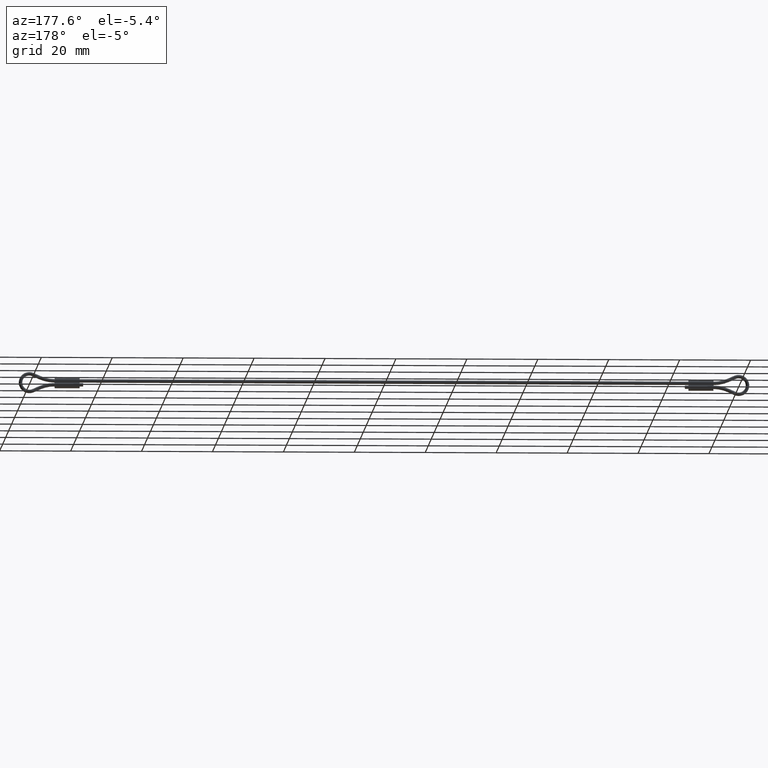
[diagram: clean part render]
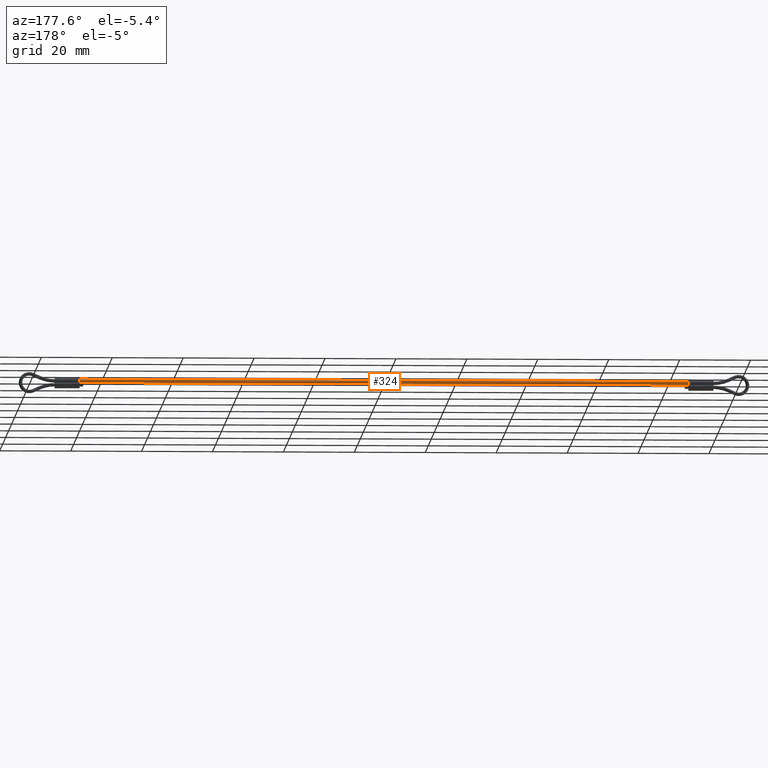
[diagram: same view with one face highlighted and labeled with its STEP entity id]
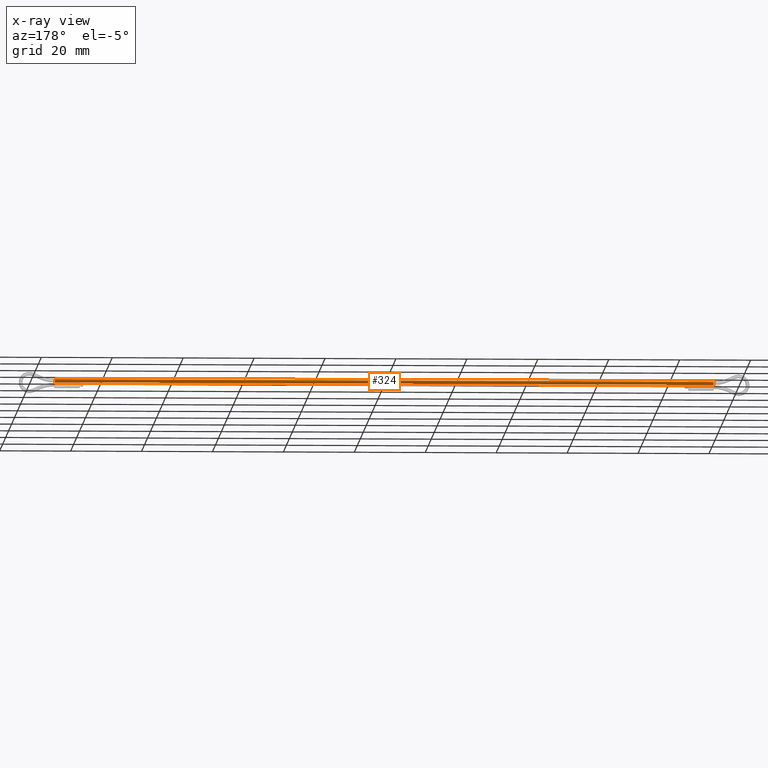
[diagram: x-ray of the same camera — body ghosted, the highlighted face saturated]
A machine part, auxiliary view. The second image highlights one B-rep face of the part: STEP entity #324.
The next image is the same camera in x-ray: the body ghosted, the highlighted face saturated — about 0% of this face is hidden behind the body in this view.
In plain terms, the highlighted cylindrical surface (edge-blend (fillet) strip) has radius 0.5 mm, axis along (-1, 0, -0).
Its self-contained STEP definition (entity closure, byte-faithful):
#324=ADVANCED_FACE('',(#453),#452,.T.);
#452=CYLINDRICAL_SURFACE('',#891,5.00000000000E-01);
#453=FACE_OUTER_BOUND('',#892,.T.);
#888=CARTESIAN_POINT('',(-1.02500000000E+02,0.00000000000E+00,5.49999999986E-01));
#889=DIRECTION('',(-1.00000000000E+00,0.00000000000E+00,-2.35659389349E-14));
#890=DIRECTION('',(-2.35659389349E-14,-0.00000000000E+00,1.00000000000E+00));
#891=AXIS2_PLACEMENT_3D('',#888,#889,#890);
#892=EDGE_LOOP('',(#1214,#1215,#1216,#1217));
#1214=ORIENTED_EDGE('',*,*,#1356,.F.);
#1215=ORIENTED_EDGE('',*,*,#1357,.F.);
#1216=ORIENTED_EDGE('',*,*,#1358,.T.);
#1217=ORIENTED_EDGE('',*,*,#1359,.T.);
#1356=EDGE_CURVE('',#1558,#1559,#1560,.T.);
#1357=EDGE_CURVE('',#1566,#1558,#1567,.T.);
#1358=EDGE_CURVE('',#1566,#1573,#1574,.T.);
#1359=EDGE_CURVE('',#1573,#1559,#1580,.T.);
#1558=VERTEX_POINT('',#2026);
#1559=VERTEX_POINT('',#2027);
#1560=CIRCLE('',#2031,5.00000000000E-01);
#1566=VERTEX_POINT('',#2032);
#1567=(BOUNDED_CURVE() B_SPLINE_CURVE(1,(#2033,#2034),.UNSPECIFIED.,.F.,.F.) B_SPLINE_CURVE_WITH_KNOTS((2,2),(4.86071741209E-02,9.51392825895E-01),.UNSPECIFIED.) CURVE() GEOMETRIC_REPRESENTATION_ITEM() RATIONAL_B_SPLINE_CURVE((1.00000000000E+00,1.00000000000E+00)) REPRESENTATION_ITEM('') );
#1573=VERTEX_POINT('',#2035);
#1574=CIRCLE('',#2039,5.00000000000E-01);
#1580=(BOUNDED_CURVE() B_SPLINE_CURVE(1,(#2040,#2041),.UNSPECIFIED.,.F.,.F.) B_SPLINE_CURVE_WITH_KNOTS((2,2),(4.86071741510E-02,9.51392825849E-01),.UNSPECIFIED.) CURVE() GEOMETRIC_REPRESENTATION_ITEM() RATIONAL_B_SPLINE_CURVE((7.50000000000E-01,7.50000000000E-01)) REPRESENTATION_ITEM('') );
#2026=CARTESIAN_POINT('',(-1.95365473818E+02,0.00000000000E+00,1.04999999998E+00));
#2027=CARTESIAN_POINT('',(-1.95365473818E+02,5.55111512313E-17,4.99999999840E-02));
#2028=CARTESIAN_POINT('',(-1.95365473818E+02,0.00000000000E+00,5.49999999984E-01));
#2029=DIRECTION('',(-1.00000000000E+00,0.00000000000E+00,-2.36271712749E-14));
#2030=DIRECTION('',(-2.36271712749E-14,-1.22460635382E-16,1.00000000000E+00));
#2031=AXIS2_PLACEMENT_3D('',#2028,#2029,#2030);
#2032=CARTESIAN_POINT('',(-9.63452618186E+00,0.00000000000E+00,1.04999999999E+00));
#2033=CARTESIAN_POINT('',(-9.63452617567E+00,0.00000000000E+00,1.04999999999E+00));
#2034=CARTESIAN_POINT('',(-1.95365473828E+02,0.00000000000E+00,1.04999999998E+00));
#2035=CARTESIAN_POINT('',(-9.63452618186E+00,5.55111512313E-17,4.99999999884E-02));
#2036=CARTESIAN_POINT('',(-9.63452618186E+00,0.00000000000E+00,5.49999999988E-01));
#2037=DIRECTION('',(-1.00000000000E+00,0.00000000000E+00,-2.36271712749E-14));
#2038=DIRECTION('',(-2.36271712749E-14,-1.22460635382E-16,1.00000000000E+00));
#2039=AXIS2_PLACEMENT_3D('',#2036,#2037,#2038);
#2040=CARTESIAN_POINT('',(-9.63452618186E+00,-1.85037170771E-17,4.99999999884E-02));
#2041=CARTESIAN_POINT('',(-1.95365473818E+02,-1.85037170771E-17,4.99999999840E-02));